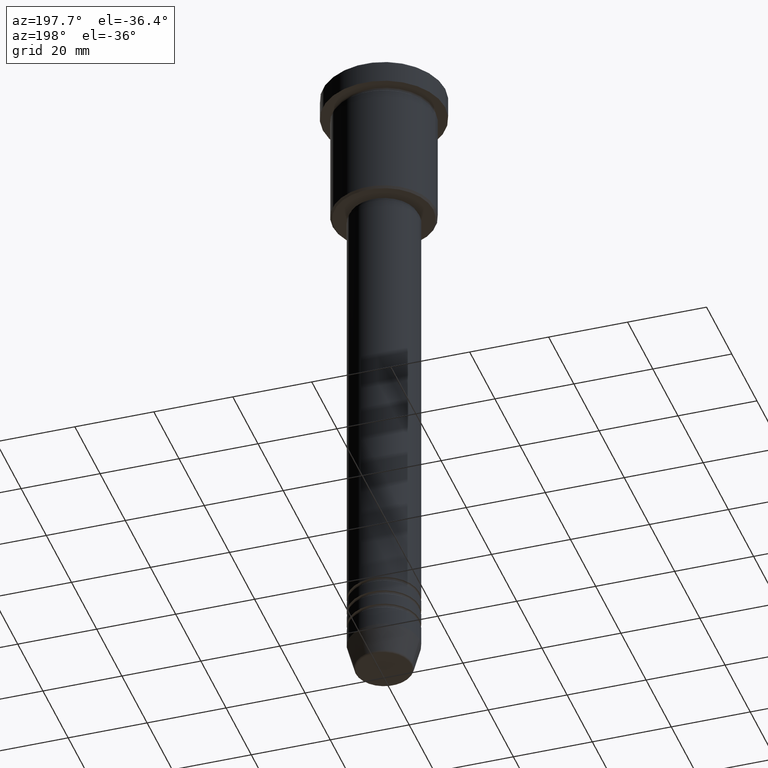
[diagram: clean part render]
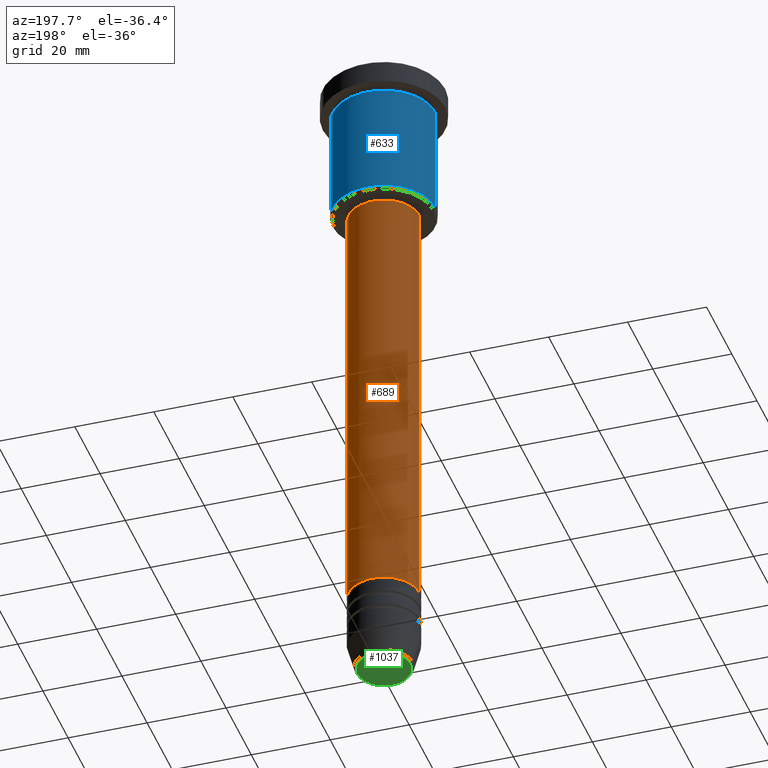
[diagram: same view with three faces highlighted in distinct colors, each labeled with its STEP entity id]
A machine part, auxiliary view with three faces highlighted in distinct colors.
Their STEP definitions:

[orange] entity #689 — the highlighted cylindrical surface (partial cylindrical patch) has radius 9 mm, axis along (-0, -0, 1).
#17 = DIRECTION ( 'NONE',  ( 1.000000000000000000, 0.000000000000000000, 0.000000000000000000 ) ) ;
#23 = CARTESIAN_POINT ( 'NONE',  ( -9.000000000000000000, 1.102182119232617714E-15, 0.000000000000000000 ) ) ;
#29 = CYLINDRICAL_SURFACE ( 'NONE', #1170, 9.000000000000000000 ) ;
#39 = EDGE_LOOP ( 'NONE', ( #313, #378, #700, #275 ) ) ;
#57 = AXIS2_PLACEMENT_3D ( 'NONE', #427, #787, #317 ) ;
#103 = CARTESIAN_POINT ( 'NONE',  ( 0.000000000000000000, 0.000000000000000000, 0.000000000000000000 ) ) ;
#131 = CARTESIAN_POINT ( 'NONE',  ( -9.000000000000001776, 1.102182119232617911E-15, -149.9999999999999147 ) ) ;
#151 = CIRCLE ( 'NONE', #57, 8.999999999999998224 ) ;
#186 = VERTEX_POINT ( 'NONE', #131 ) ;
#275 = ORIENTED_EDGE ( 'NONE', *, *, #417, .F. ) ;
#279 = VERTEX_POINT ( 'NONE', #695 ) ;
#313 = ORIENTED_EDGE ( 'NONE', *, *, #1135, .T. ) ;
#317 = DIRECTION ( 'NONE',  ( 1.000000000000000000, 0.000000000000000000, 0.000000000000000000 ) ) ;
#338 = CARTESIAN_POINT ( 'NONE',  ( 9.000000000000000000, 0.000000000000000000, 0.000000000000000000 ) ) ;
#378 = ORIENTED_EDGE ( 'NONE', *, *, #705, .T. ) ;
#397 = VERTEX_POINT ( 'NONE', #528 ) ;
#417 = EDGE_CURVE ( 'NONE', #589, #397, #780, .T. ) ;
#427 = CARTESIAN_POINT ( 'NONE',  ( 0.000000000000000000, 0.000000000000000000, -37.00000000000002842 ) ) ;
#458 = CARTESIAN_POINT ( 'NONE',  ( 9.000000000000001776, 0.000000000000000000, -149.9999999999999147 ) ) ;
#484 = AXIS2_PLACEMENT_3D ( 'NONE', #849, #1014, #17 ) ;
#528 = CARTESIAN_POINT ( 'NONE',  ( 8.999999999999998224, 0.000000000000000000, -37.00000000000002842 ) ) ;
#589 = VERTEX_POINT ( 'NONE', #458 ) ;
#658 = DIRECTION ( 'NONE',  ( 1.000000000000000000, 0.000000000000000000, 0.000000000000000000 ) ) ;
#689 = ADVANCED_FACE ( 'NONE', ( #739 ), #29, .T. ) ;
#695 = CARTESIAN_POINT ( 'NONE',  ( -8.999999999999998224, 1.102182119232617714E-15, -37.00000000000002842 ) ) ;
#700 = ORIENTED_EDGE ( 'NONE', *, *, #889, .F. ) ;
#705 = EDGE_CURVE ( 'NONE', #186, #279, #942, .T. ) ;
#739 = FACE_OUTER_BOUND ( 'NONE', #39, .T. ) ;
#744 = VECTOR ( 'NONE', #848, 1000.000000000000000 ) ;
#756 = DIRECTION ( 'NONE',  ( -0.000000000000000000, -0.000000000000000000, 1.000000000000000000 ) ) ;
#780 = LINE ( 'NONE', #338, #744 ) ;
#787 = DIRECTION ( 'NONE',  ( -0.000000000000000000, -0.000000000000000000, 1.000000000000000000 ) ) ;
#848 = DIRECTION ( 'NONE',  ( -0.000000000000000000, -0.000000000000000000, 1.000000000000000000 ) ) ;
#849 = CARTESIAN_POINT ( 'NONE',  ( 0.000000000000000000, 0.000000000000000000, -149.9999999999999147 ) ) ;
#889 = EDGE_CURVE ( 'NONE', #397, #279, #151, .T. ) ;
#942 = LINE ( 'NONE', #23, #1181 ) ;
#975 = CIRCLE ( 'NONE', #484, 9.000000000000001776 ) ;
#1014 = DIRECTION ( 'NONE',  ( -0.000000000000000000, -0.000000000000000000, 1.000000000000000000 ) ) ;
#1122 = DIRECTION ( 'NONE',  ( -0.000000000000000000, -0.000000000000000000, 1.000000000000000000 ) ) ;
#1135 = EDGE_CURVE ( 'NONE', #589, #186, #975, .T. ) ;
#1170 = AXIS2_PLACEMENT_3D ( 'NONE', #103, #756, #658 ) ;
#1181 = VECTOR ( 'NONE', #1122, 1000.000000000000000 ) ;

[blue] entity #633 — the highlighted cylindrical surface (partial cylindrical patch) has radius 13 mm, axis along (-0, -0, 1).
#2 = CARTESIAN_POINT ( 'NONE',  ( 13.00000000000000178, 0.000000000000000000, -35.49999999999999289 ) ) ;
#49 = DIRECTION ( 'NONE',  ( -0.000000000000000000, -0.000000000000000000, 1.000000000000000000 ) ) ;
#63 = EDGE_CURVE ( 'NONE', #635, #1160, #377, .T. ) ;
#87 = DIRECTION ( 'NONE',  ( 1.000000000000000000, 0.000000000000000000, 0.000000000000000000 ) ) ;
#89 = EDGE_CURVE ( 'NONE', #872, #297, #451, .T. ) ;
#91 = CARTESIAN_POINT ( 'NONE',  ( 13.00000000000000178, 0.000000000000000000, -6.999999999999995559 ) ) ;
#108 = CARTESIAN_POINT ( 'NONE',  ( 0.000000000000000000, 0.000000000000000000, -6.999999999999995559 ) ) ;
#120 = VECTOR ( 'NONE', #646, 1000.000000000000000 ) ;
#155 = EDGE_LOOP ( 'NONE', ( #229, #290, #483, #862 ) ) ;
#229 = ORIENTED_EDGE ( 'NONE', *, *, #914, .T. ) ;
#281 = AXIS2_PLACEMENT_3D ( 'NONE', #332, #49, #865 ) ;
#290 = ORIENTED_EDGE ( 'NONE', *, *, #89, .T. ) ;
#297 = VERTEX_POINT ( 'NONE', #685 ) ;
#332 = CARTESIAN_POINT ( 'NONE',  ( 0.000000000000000000, 0.000000000000000000, -35.49999999999999289 ) ) ;
#339 = VECTOR ( 'NONE', #1109, 1000.000000000000000 ) ;
#377 = LINE ( 'NONE', #632, #339 ) ;
#385 = AXIS2_PLACEMENT_3D ( 'NONE', #108, #662, #87 ) ;
#451 = LINE ( 'NONE', #830, #120 ) ;
#454 = FACE_OUTER_BOUND ( 'NONE', #155, .T. ) ;
#483 = ORIENTED_EDGE ( 'NONE', *, *, #1176, .F. ) ;
#632 = CARTESIAN_POINT ( 'NONE',  ( 13.00000000000000178, 0.000000000000000000, 0.000000000000000000 ) ) ;
#633 = ADVANCED_FACE ( 'NONE', ( #454 ), #1092, .T. ) ;
#635 = VERTEX_POINT ( 'NONE', #2 ) ;
#646 = DIRECTION ( 'NONE',  ( -0.000000000000000000, -0.000000000000000000, 1.000000000000000000 ) ) ;
#662 = DIRECTION ( 'NONE',  ( -0.000000000000000000, -0.000000000000000000, 1.000000000000000000 ) ) ;
#685 = CARTESIAN_POINT ( 'NONE',  ( -13.00000000000000178, 1.592040838891559293E-15, -6.999999999999995559 ) ) ;
#730 = CIRCLE ( 'NONE', #385, 13.00000000000000178 ) ;
#807 = CARTESIAN_POINT ( 'NONE',  ( 0.000000000000000000, 0.000000000000000000, 0.000000000000000000 ) ) ;
#812 = DIRECTION ( 'NONE',  ( -0.000000000000000000, -0.000000000000000000, 1.000000000000000000 ) ) ;
#830 = CARTESIAN_POINT ( 'NONE',  ( -13.00000000000000178, 1.592040838891559293E-15, 0.000000000000000000 ) ) ;
#862 = ORIENTED_EDGE ( 'NONE', *, *, #63, .F. ) ;
#865 = DIRECTION ( 'NONE',  ( -1.000000000000000000, 0.000000000000000000, 0.000000000000000000 ) ) ;
#872 = VERTEX_POINT ( 'NONE', #1139 ) ;
#880 = AXIS2_PLACEMENT_3D ( 'NONE', #807, #812, #1178 ) ;
#882 = CIRCLE ( 'NONE', #281, 13.00000000000000178 ) ;
#914 = EDGE_CURVE ( 'NONE', #635, #872, #882, .T. ) ;
#1092 = CYLINDRICAL_SURFACE ( 'NONE', #880, 13.00000000000000178 ) ;
#1109 = DIRECTION ( 'NONE',  ( -0.000000000000000000, -0.000000000000000000, 1.000000000000000000 ) ) ;
#1139 = CARTESIAN_POINT ( 'NONE',  ( -13.00000000000000178, 1.592040838891559293E-15, -35.49999999999999289 ) ) ;
#1160 = VERTEX_POINT ( 'NONE', #91 ) ;
#1176 = EDGE_CURVE ( 'NONE', #1160, #297, #730, .T. ) ;
#1178 = DIRECTION ( 'NONE',  ( 1.000000000000000000, 0.000000000000000000, 0.000000000000000000 ) ) ;

[green] entity #1037 — the highlighted planar face has unit normal (0, -0, 1).
#1 = DIRECTION ( 'NONE',  ( 1.000000000000000000, 0.000000000000000000, 0.000000000000000000 ) ) ;
#58 = VERTEX_POINT ( 'NONE', #257 ) ;
#64 = FACE_OUTER_BOUND ( 'NONE', #437, .T. ) ;
#82 = CIRCLE ( 'NONE', #763, 6.740692158992658278 ) ;
#157 = EDGE_CURVE ( 'NONE', #58, #233, #82, .T. ) ;
#160 = DIRECTION ( 'NONE',  ( 1.000000000000000000, 0.000000000000000000, 0.000000000000000000 ) ) ;
#170 = DIRECTION ( 'NONE',  ( 0.000000000000000000, 0.000000000000000000, -1.000000000000000000 ) ) ;
#205 = ORIENTED_EDGE ( 'NONE', *, *, #1107, .T. ) ;
#233 = VERTEX_POINT ( 'NONE', #957 ) ;
#257 = CARTESIAN_POINT ( 'NONE',  ( 6.740692158992658278, 0.000000000000000000, -171.0000000000000284 ) ) ;
#356 = DIRECTION ( 'NONE',  ( 0.000000000000000000, -0.000000000000000000, 1.000000000000000000 ) ) ;
#359 = PLANE ( 'NONE',  #502 ) ;
#437 = EDGE_LOOP ( 'NONE', ( #552, #205 ) ) ;
#502 = AXIS2_PLACEMENT_3D ( 'NONE', #1081, #356, #160 ) ;
#552 = ORIENTED_EDGE ( 'NONE', *, *, #157, .T. ) ;
#759 = CARTESIAN_POINT ( 'NONE',  ( 0.000000000000000000, 0.000000000000000000, -171.0000000000000284 ) ) ;
#763 = AXIS2_PLACEMENT_3D ( 'NONE', #759, #1119, #1033 ) ;
#816 = CARTESIAN_POINT ( 'NONE',  ( 0.000000000000000000, 0.000000000000000000, -171.0000000000000284 ) ) ;
#957 = CARTESIAN_POINT ( 'NONE',  ( -6.740692158992658278, 8.550696569392685681E-16, -171.0000000000000284 ) ) ;
#1033 = DIRECTION ( 'NONE',  ( 1.000000000000000000, 0.000000000000000000, 0.000000000000000000 ) ) ;
#1037 = ADVANCED_FACE ( 'NONE', ( #64 ), #359, .F. ) ;
#1048 = CIRCLE ( 'NONE', #1132, 6.740692158992658278 ) ;
#1081 = CARTESIAN_POINT ( 'NONE',  ( 0.000000000000000000, 0.000000000000000000, -171.0000000000000284 ) ) ;
#1107 = EDGE_CURVE ( 'NONE', #233, #58, #1048, .T. ) ;
#1119 = DIRECTION ( 'NONE',  ( 0.000000000000000000, 0.000000000000000000, -1.000000000000000000 ) ) ;
#1132 = AXIS2_PLACEMENT_3D ( 'NONE', #816, #170, #1 ) ;